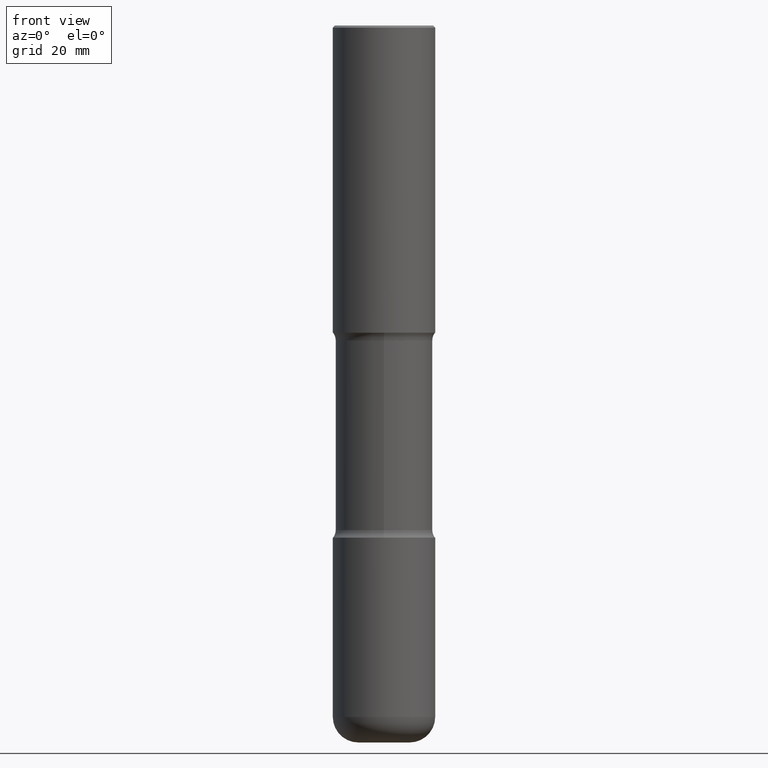
[diagram: clean part render]
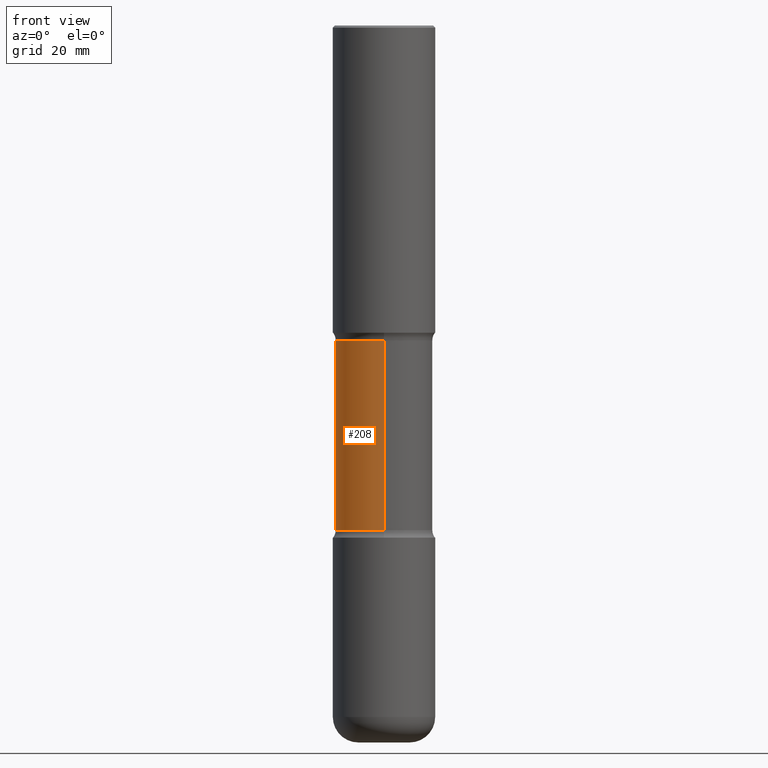
[diagram: same view with one face highlighted and labeled with its STEP entity id]
A machine part, front view. The second image highlights one B-rep face of the part: STEP entity #208.
In plain terms, the highlighted cylindrical surface (partial cylindrical patch) has radius 12.065 mm, axis along (0, -0, -1).
Its self-contained STEP definition (entity closure, byte-faithful):
#40 = DIRECTION ( 'NONE',  ( 6.982962677686265922E-15, 1.000000000000000000, -2.300503573612011028E-15 ) ) ;
#65 = VECTOR ( 'NONE', #419, 39.37007874015748143 ) ;
#74 = VERTEX_POINT ( 'NONE', #449 ) ;
#76 = LINE ( 'NONE', #425, #393 ) ;
#83 = DIRECTION ( 'NONE',  ( 2.495638921910708014E-29, -3.419634877618474112E-15, -1.000000000000000000 ) ) ;
#86 = EDGE_CURVE ( 'NONE', #272, #158, #250, .T. ) ;
#116 = CARTESIAN_POINT ( 'NONE',  ( 3.316907271901051235E-15, 0.4749999999999892641, -3.075000000000001510 ) ) ;
#128 = DIRECTION ( 'NONE',  ( 2.495638921910708014E-29, -3.419634877618474112E-15, -1.000000000000000000 ) ) ;
#158 = VERTEX_POINT ( 'NONE', #116 ) ;
#163 = ORIENTED_EDGE ( 'NONE', *, *, #185, .T. ) ;
#168 = LINE ( 'NONE', #337, #65 ) ;
#185 = EDGE_CURVE ( 'NONE', #158, #74, #76, .T. ) ;
#206 = EDGE_CURVE ( 'NONE', #272, #409, #168, .T. ) ;
#208 = ADVANCED_FACE ( 'NONE', ( #287 ), #293, .T. ) ;
#250 = CIRCLE ( 'NONE', #472, 0.4750000000000001443 ) ;
#272 = VERTEX_POINT ( 'NONE', #426 ) ;
#284 = DIRECTION ( 'NONE',  ( 6.982962677686265133E-15, 1.000000000000000000, -3.450755360418015555E-15 ) ) ;
#287 = FACE_OUTER_BOUND ( 'NONE', #398, .T. ) ;
#293 = CYLINDRICAL_SURFACE ( 'NONE', #479, 0.4750000000000000333 ) ;
#316 = DIRECTION ( 'NONE',  ( 2.495638921910708014E-29, -3.419634877618474112E-15, -1.000000000000000000 ) ) ;
#317 = DIRECTION ( 'NONE',  ( 2.495638921910708014E-29, -3.419634877618474112E-15, -1.000000000000000000 ) ) ;
#337 = CARTESIAN_POINT ( 'NONE',  ( -3.258736548941304889E-15, -0.4750000000000243472, -6.999999999999997335 ) ) ;
#378 = ORIENTED_EDGE ( 'NONE', *, *, #473, .F. ) ;
#393 = VECTOR ( 'NONE', #83, 39.37007874015748143 ) ;
#396 = CARTESIAN_POINT ( 'NONE',  ( 1.204017111178237438E-28, -1.720093407839433761E-14, -4.924999999999998046 ) ) ;
#398 = EDGE_LOOP ( 'NONE', ( #447, #514, #163, #378 ) ) ;
#407 = CIRCLE ( 'NONE', #440, 0.4749999999999999778 ) ;
#409 = VERTEX_POINT ( 'NONE', #525 ) ;
#419 = DIRECTION ( 'NONE',  ( 2.495638921910708014E-29, -3.419634877618474112E-15, -1.000000000000000000 ) ) ;
#425 = CARTESIAN_POINT ( 'NONE',  ( 3.316907271901148659E-15, 0.4749999999999757194, -7.000000000000000000 ) ) ;
#426 = CARTESIAN_POINT ( 'NONE',  ( -3.344492773913550718E-15, -0.4750000000000109690, -3.074999999999998401 ) ) ;
#440 = AXIS2_PLACEMENT_3D ( 'NONE', #396, #317, #489 ) ;
#447 = ORIENTED_EDGE ( 'NONE', *, *, #206, .F. ) ;
#449 = CARTESIAN_POINT ( 'NONE',  ( 3.316907271901096594E-15, 0.4749999999999827693, -4.924999999999999822 ) ) ;
#458 = CARTESIAN_POINT ( 'NONE',  ( 1.721862187474709565E-28, -2.429667644945267101E-14, -6.999999999999998224 ) ) ;
#472 = AXIS2_PLACEMENT_3D ( 'NONE', #541, #316, #284 ) ;
#473 = EDGE_CURVE ( 'NONE', #409, #74, #407, .T. ) ;
#479 = AXIS2_PLACEMENT_3D ( 'NONE', #458, #128, #40 ) ;
#489 = DIRECTION ( 'NONE',  ( 6.982962677686265133E-15, 1.000000000000000000, -2.300503573612011422E-15 ) ) ;
#514 = ORIENTED_EDGE ( 'NONE', *, *, #86, .T. ) ;
#525 = CARTESIAN_POINT ( 'NONE',  ( -3.344492773913500625E-15, -0.4750000000000171863, -4.924999999999997158 ) ) ;
#541 = CARTESIAN_POINT ( 'NONE',  ( 7.423239106247569958E-29, -1.087460955480016368E-14, -3.074999999999999734 ) ) ;